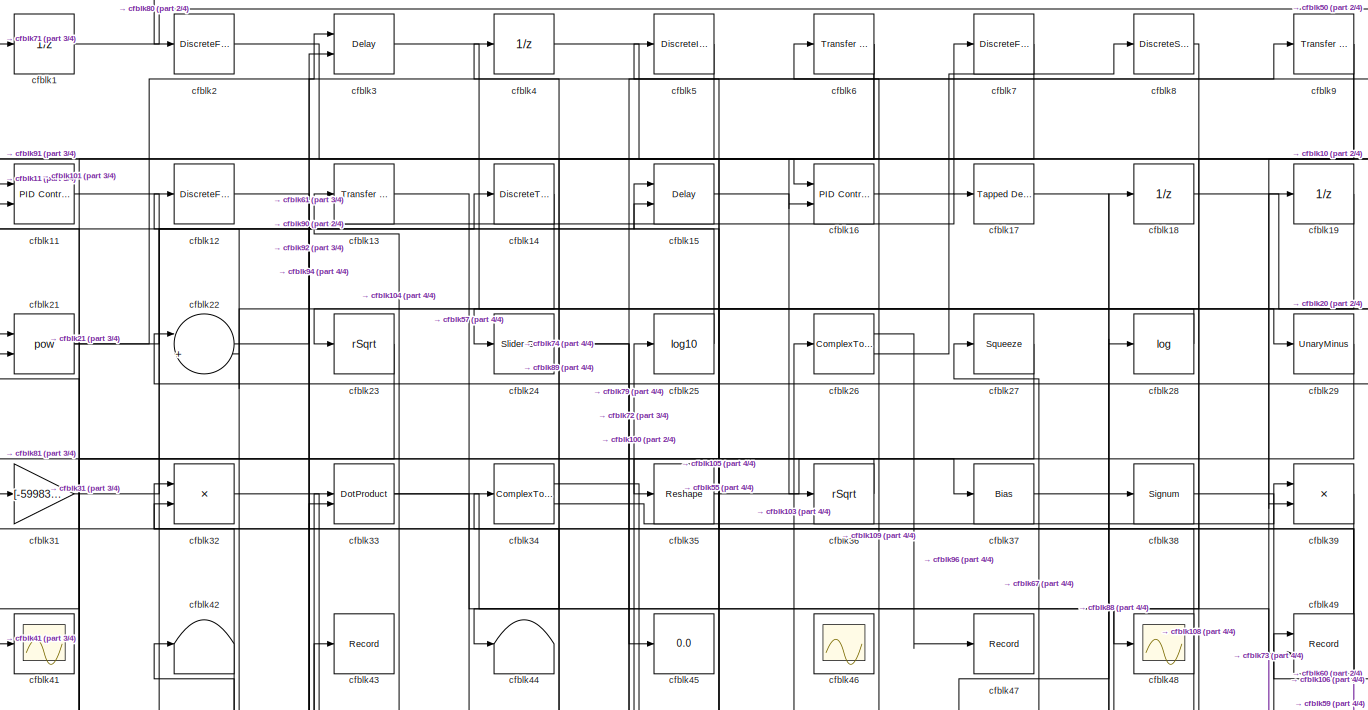
[diagram: root canvas - part 1/4, full width, top band]
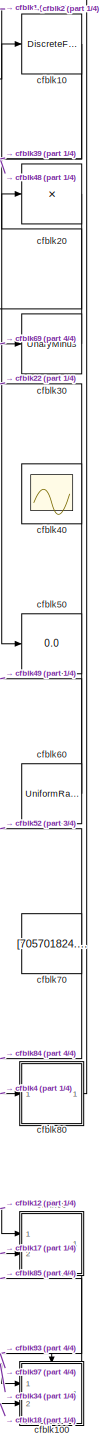
[diagram: root canvas - part 2/4, right side, full height]
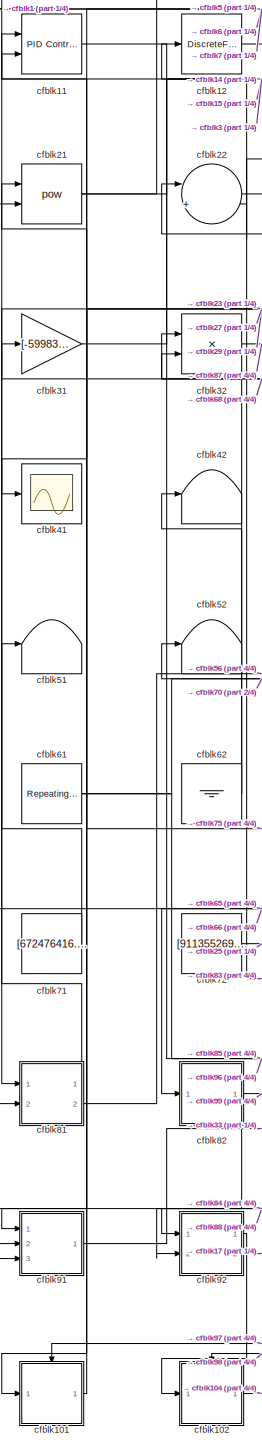
[diagram: root canvas - part 3/4, left side, full height]
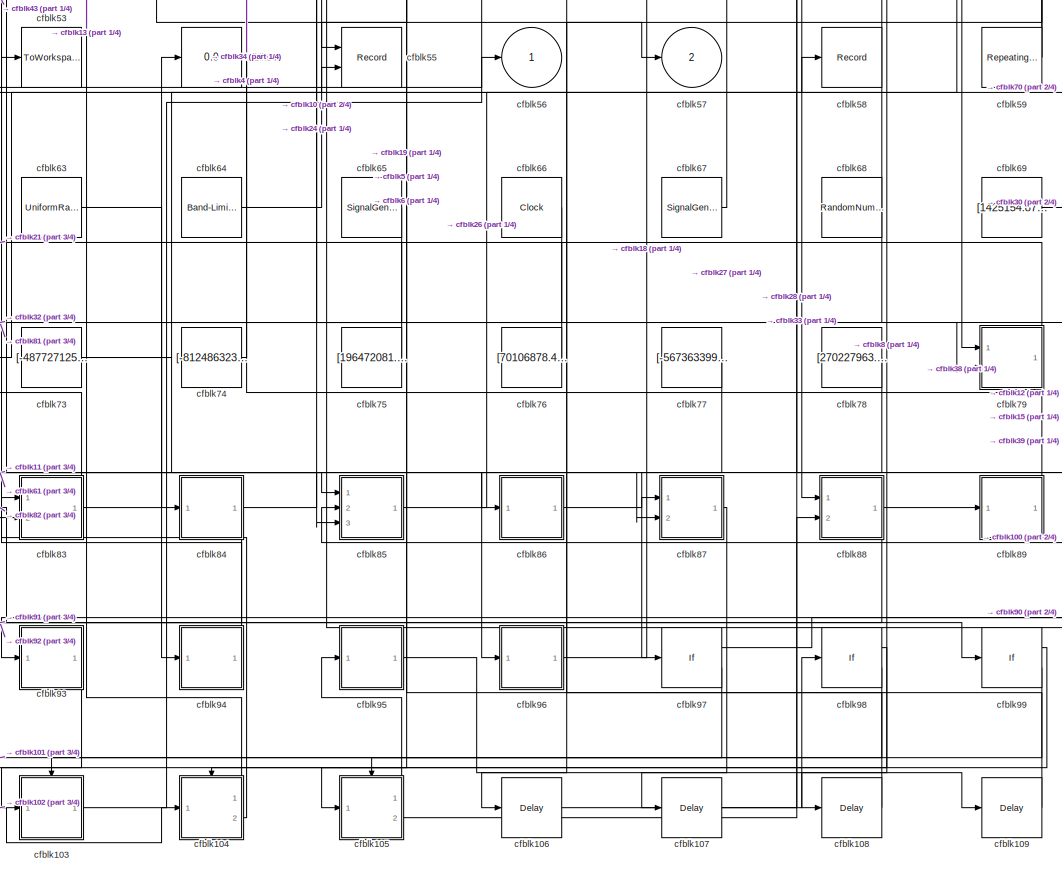
[diagram: root canvas - part 4/4, bottom center region]
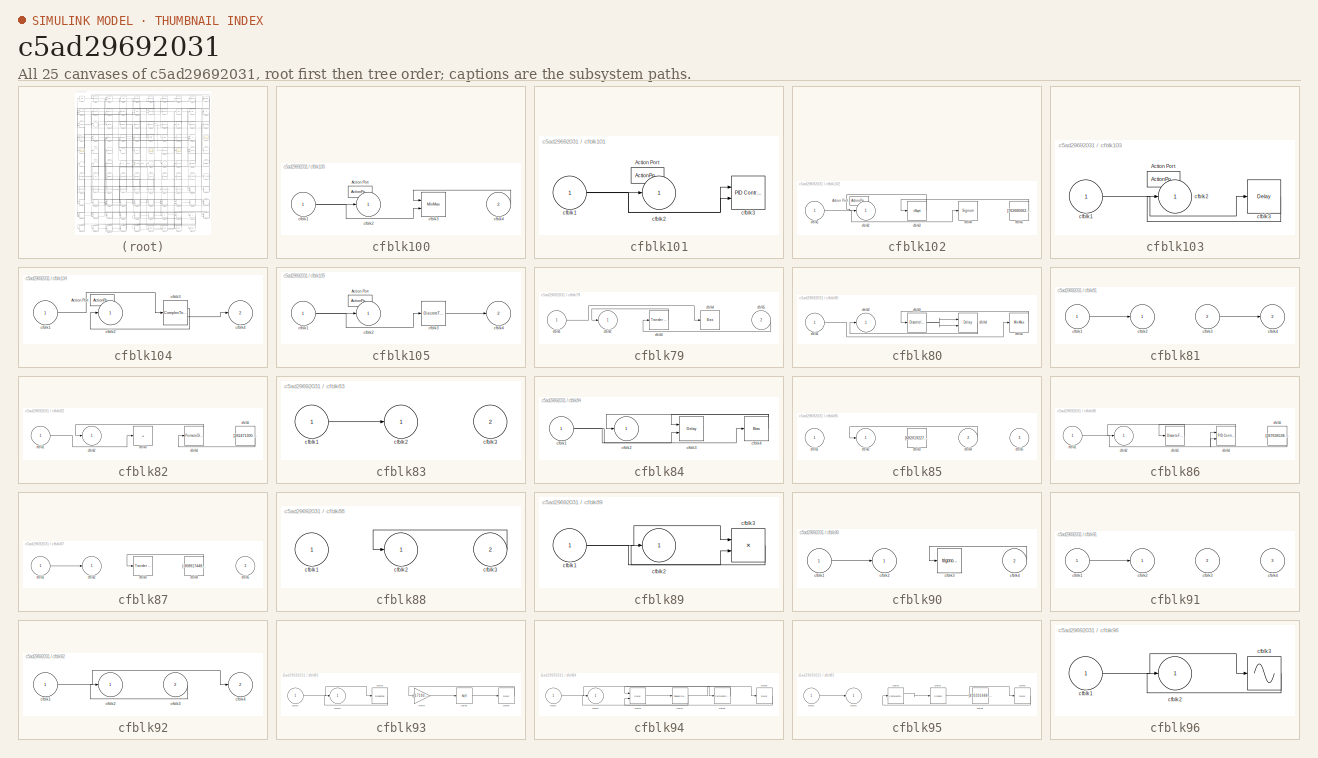
[diagram: thumbnail index - all 25 canvases of the model, root first then tree order]
MODEL slx_c5ad29692031
KIND model
CONFIG AbsTol = auto
CONFIG EnableMultiTasking = off
CONFIG FixedStep = auto
CONFIG MaxStep = auto
CONFIG MinStep = auto
CONFIG RelTol = 1e-3
CONFIG SampleTimeConstraint = Unconstrained
CONFIG SolverName = VariableStepAuto
CONFIG StartTime = 0.0
CONFIG StopTime = 10.0
BLOCK [UnitDelay] cfblk1
  HasFrameUpgradeWarning = on
BLOCK [DiscreteFilter] cfblk10
  InputPortMap = u0
  Ports = [1, 1]
  SampleTime = 1
BLOCK [SubSystem] cfblk100
  Ports = [2, 1, 0, 0, 0, 0, 0, 1]
  RequestExecContextInheritance = off
  TreatAsAtomicUnit = on
BLOCK [ActionPort] cfblk100/Action Port
  ActionPortLabel = if(u1 >= 0)
BLOCK [Inport] cfblk100/cfblk1
BLOCK [Outport] cfblk100/cfblk2
BLOCK [MinMax] cfblk100/cfblk3
  Inputs = 2
  Ports = [2, 1]
BLOCK [Inport] cfblk100/cfblk4
  Port = 2
BLOCK [SubSystem] cfblk101
  Ports = [1, 1, 0, 0, 0, 0, 0, 1]
  RequestExecContextInheritance = off
  TreatAsAtomicUnit = on
BLOCK [ActionPort] cfblk101/Action Port
  ActionPortLabel = else
BLOCK [Inport] cfblk101/cfblk1
BLOCK [Outport] cfblk101/cfblk2
BLOCK [Reference] cfblk101/cfblk3  REF=slpidlib/PID Controller (2DOF)
  Ports = [2, 1]
  SourceBlock = slpidlib/PID Controller (2DOF)
  SourceProductBaseCode = SL
  SourceType = PID 2dof
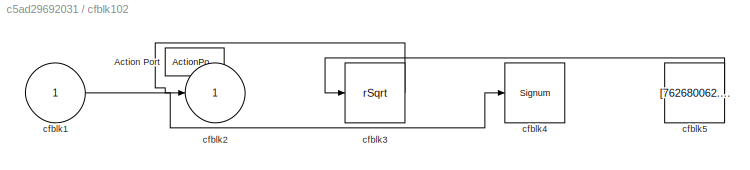
BLOCK [SubSystem] cfblk102
  Ports = [1, 1, 0, 0, 0, 0, 0, 1]
  RequestExecContextInheritance = off
  TreatAsAtomicUnit = on
BLOCK [ActionPort] cfblk102/Action Port
  ActionPortLabel = if(u1 >= 0)
BLOCK [Inport] cfblk102/cfblk1
BLOCK [Outport] cfblk102/cfblk2
BLOCK [Sqrt] cfblk102/cfblk3
  AlgorithmType = Newton-Raphson
  Operator = rSqrt
BLOCK [Signum] cfblk102/cfblk4
BLOCK [Constant] cfblk102/cfblk5
  SampleTime = 1
  Value = [762680062.186665]
BLOCK [SubSystem] cfblk103
  Ports = [1, 1, 0, 0, 0, 0, 0, 1]
  RequestExecContextInheritance = off
  TreatAsAtomicUnit = on
BLOCK [ActionPort] cfblk103/Action Port
  ActionPortLabel = else
BLOCK [Inport] cfblk103/cfblk1
BLOCK [Outport] cfblk103/cfblk2
BLOCK [Delay] cfblk103/cfblk3
  InputPortMap = u0
  Ports = [1, 1]
BLOCK [SubSystem] cfblk104
  Ports = [1, 2, 0, 0, 0, 0, 0, 1]
  RequestExecContextInheritance = off
  TreatAsAtomicUnit = on
BLOCK [ActionPort] cfblk104/Action Port
  ActionPortLabel = if(u1 >= 0)
BLOCK [Inport] cfblk104/cfblk1
BLOCK [Outport] cfblk104/cfblk2
BLOCK [ComplexToRealImag] cfblk104/cfblk3
  Ports = [1, 2]
BLOCK [Outport] cfblk104/cfblk4
  Port = 2
BLOCK [SubSystem] cfblk105
  Ports = [1, 2, 0, 0, 0, 0, 0, 1]
  RequestExecContextInheritance = off
  TreatAsAtomicUnit = on
BLOCK [ActionPort] cfblk105/Action Port
  ActionPortLabel = else
BLOCK [Inport] cfblk105/cfblk1
BLOCK [Outport] cfblk105/cfblk2
BLOCK [DiscreteTransferFcn] cfblk105/cfblk3
  InputPortMap = u0
  Ports = [1, 1]
BLOCK [Outport] cfblk105/cfblk4
  Port = 2
BLOCK [Delay] cfblk106
  InputPortMap = u0
  Ports = [1, 1]
  SampleTime = 1
BLOCK [Delay] cfblk107
  InputPortMap = u0
  Ports = [1, 1]
  SampleTime = 1
BLOCK [Delay] cfblk108
  InputPortMap = u0
  Ports = [1, 1]
  SampleTime = 1
BLOCK [Delay] cfblk109
  InputPortMap = u0
  Ports = [1, 1]
  SampleTime = 1
BLOCK [Reference] cfblk11  REF=slpidlib/PID Controller (2DOF)
  Ports = [2, 1]
  SourceBlock = slpidlib/PID Controller (2DOF)
  SourceProductBaseCode = SL
  SourceType = PID 2dof
BLOCK [DiscreteFilter] cfblk12
  InputPortMap = u0
  Ports = [1, 1]
  SampleTime = 1
BLOCK [Reference] cfblk13  REF=simulink/Discrete/Transfer Fcn
Real Zero
  Ports = [1, 1]
  SourceBlock = simulink/Discrete/Transfer Fcn\nReal Zero
  SourceProductBaseCode = SL
  SourceType = Transfer Fcn Real Zero
BLOCK [DiscreteTransferFcn] cfblk14
  InputPortMap = u0
  Ports = [1, 1]
  SampleTime = 1
BLOCK [Delay] cfblk15
  InputPortMap = u0,e6
  Ports = [2, 1]
  SampleTime = 1
  ShowEnablePort = on
BLOCK [Reference] cfblk16  REF=slpidlib/PID Controller (2DOF)
  Ports = [2, 1]
  SourceBlock = slpidlib/PID Controller (2DOF)
  SourceProductBaseCode = SL
  SourceType = PID 2dof
BLOCK [Reference] cfblk17  REF=simulink/Discrete/Tapped Delay
  Ports = [1, 1]
  SourceBlock = simulink/Discrete/Tapped Delay
  SourceProductBaseCode = SL
  SourceType = Tapped Delay Line
BLOCK [UnitDelay] cfblk18
  HasFrameUpgradeWarning = on
BLOCK [UnitDelay] cfblk19
  HasFrameUpgradeWarning = on
BLOCK [DiscreteFir] cfblk2
  InputPortMap = u0
  OutputPortMap = o0
  Ports = [1, 1]
  SampleTime = 1
BLOCK [Product] cfblk20
  Inputs = *
  Ports = [1, 1]
BLOCK [Math] cfblk21
  Operator = pow
  Ports = [2, 1]
BLOCK [Sum] cfblk22
  Inputs = |++
  Ports = [2, 1]
BLOCK [Sqrt] cfblk23
  AlgorithmType = Newton-Raphson
  Operator = rSqrt
BLOCK [Reference] cfblk24  REF=simulink/Math
Operations/Slider
Gain
  Ports = [1, 1]
  SourceBlock = simulink/Math\nOperations/Slider\nGain
  SourceProductBaseCode = SL
  SourceType = Slider Gain
BLOCK [Math] cfblk25
  Operator = log10
  Ports = [1, 1]
BLOCK [ComplexToRealImag] cfblk26
  Ports = [1, 2]
BLOCK [Squeeze] cfblk27
BLOCK [Math] cfblk28
  Operator = log
  Ports = [1, 1]
BLOCK [UnaryMinus] cfblk29
BLOCK [Delay] cfblk3
  InputPortMap = u0,e6
  Ports = [2, 1]
  SampleTime = 1
  ShowEnablePort = on
BLOCK [UnaryMinus] cfblk30
BLOCK [Gain] cfblk31
  Gain = [-599834200.647104]
BLOCK [Product] cfblk32
  Ports = [2, 1]
BLOCK [DotProduct] cfblk33
  OutDataTypeStr = Inherit: Inherit via internal rule
BLOCK [ComplexToRealImag] cfblk34
  Ports = [1, 2]
BLOCK [Reshape] cfblk35
  Ports = [1, 1]
BLOCK [Sqrt] cfblk36
  AlgorithmType = Newton-Raphson
  Operator = rSqrt
BLOCK [Bias] cfblk37
  Bias = [413411902.530255]
  SaturateOnIntegerOverflow = off
BLOCK [Signum] cfblk38
BLOCK [Product] cfblk39
  Ports = [2, 1]
BLOCK [UnitDelay] cfblk4
  HasFrameUpgradeWarning = on
BLOCK [Scope] cfblk40
  Floating = on
  NumInputPorts = 1
  Ports = []
BLOCK [Scope] cfblk41
  Floating = off
  NumInputPorts = 1
  Ports = [1]
BLOCK [Terminator] cfblk42
BLOCK [Record] cfblk43
  FileSettingsInternal = {"entries":[{"content":{"excelSettings":{"content":{},"type":"Streamout.ExcelSettings"}},"type":"Streamout.FileSettingStorage","uuid":"86445610-928e-4e35-9d69-0b2c780a0add"}],"packageUris":["http://schema.mathworks.com/mf0/streamout_blocks/R2020a"],"version":"1.0"}
  Ports = [1]
  SignalsInternal = {"entries":[{"content":{"signals":[{"content":{"blockPath":["sampleModel180/cfblk43"],"channel":[],"dimensions":[1],"domain":"sampleModel180/cfblk43","lineColor":"#4dbeee","plots":[1],"port":1,"sid":[""],"signalID":6746,"signalName":"cfblk79"},"type":"RecordBlkView.Signal","uuid":"ec482149-7623-4eb4-899c-afc25818783d"}]},"type":"RecordBlkView.InputSignals","uuid":"a47f1734-a9d2-497d-b596-b6906e889...<+97ch>
  VisualizationBindings = {"sparklinesplugin":{"info":[{"bindingParametersList":[],"subplotID":1}]}}
BLOCK [Terminator] cfblk44
BLOCK [Display] cfblk45
  Decimation = 1
  Ports = [1]
BLOCK [Scope] cfblk46
  Floating = on
  NumInputPorts = 1
  Ports = []
BLOCK [Record] cfblk47
  FileSettingsInternal = {"entries":[{"content":{"excelSettings":{"content":{},"type":"Streamout.ExcelSettings"}},"type":"Streamout.FileSettingStorage","uuid":"e1298681-f42b-4617-9df3-3c8d902f72c9"}],"packageUris":["http://schema.mathworks.com/mf0/streamout_blocks/R2020a"],"version":"1.0"}
  Ports = [1]
  SignalsInternal = {"entries":[{"content":{"signals":[{"content":{"blockPath":["sampleModel180/cfblk47"],"channel":[],"dimensions":[1],"domain":"sampleModel180/cfblk47","lineColor":"#a2142f","plots":[1],"port":1,"sid":[""],"signalID":6750,"signalName":"cfblk26:1"},"type":"RecordBlkView.Signal","uuid":"9f111c3f-576d-47fa-9d33-bb703aee1316"}]},"type":"RecordBlkView.InputSignals","uuid":"73cee130-5659-46ca-9b54-9eadd69...<+99ch>
  VisualizationBindings = {"sparklinesplugin":{"info":[{"bindingParametersList":[],"subplotID":1}]}}
BLOCK [Scope] cfblk48
  Floating = off
  NumInputPorts = 1
  Ports = [1]
BLOCK [Record] cfblk49
  CompatibilityTag = XY
  FileSettingsInternal = {"entries":[{"content":{"excelSettings":{"content":{},"type":"Streamout.ExcelSettings"}},"type":"Streamout.FileSettingStorage","uuid":"1f60f6e5-b911-44b5-b854-fc3e9ae4dd78"}],"packageUris":["http://schema.mathworks.com/mf0/streamout_blocks/R2020a"],"version":"1.0"}
  Layout = [1 1]
  Ports = [2]
  SignalsInternal = {"entries":[{"content":{"signals":[{"content":{"blockPath":["sampleModel180/cfblk49"],"channel":[],"dimensions":[1],"domain":"sampleModel180/cfblk49","lineColor":"#a2142f","plots":[1],"port":1,"sid":[""],"signalID":6754,"signalName":"cfblk60"},"type":"RecordBlkView.Signal","uuid":"31debbde-8abb-4355-a209-1ad38695556c"},{"content":{"blockPath":["sampleModel180/cfblk49"],"channel":[],"dimensions":[1...<+383ch>
  VisualizationBindings = {"xyplotplugin":{"info":[{"series":[{"bindingParametersList":[{"parameter":"X-Axis","signalID":6754,"signalName":"cfblk60"},{"parameter":"Y-Axis","signalID":6758,"signalName":"cfblk33"}],"seriesID":2376}],"subplotID":1}]}}
BLOCK [DiscreteIntegrator] cfblk5
  ICPrevOutput = DiscIntNeverNeededParam
  ICPrevScaledInput = DiscIntNeverNeededParam
  InitialConditionSetting = Auto
  Ports = [1, 1]
BLOCK [Display] cfblk50
  Decimation = 1
  Ports = [1]
BLOCK [Terminator] cfblk51
BLOCK [Terminator] cfblk52
BLOCK [ToWorkspace] cfblk53
  FixptAsFi = on
  MaxDataPoints = inf
  Ports = [1]
  SampleTime = -1
  SaveFormat = Timeseries
  VariableName = twnksui
BLOCK [Display] cfblk54
  Decimation = 1
  Ports = [1]
BLOCK [Record] cfblk55
  CompatibilityTag = XY
  FileSettingsInternal = {"entries":[{"content":{"excelSettings":{"content":{},"type":"Streamout.ExcelSettings"}},"type":"Streamout.FileSettingStorage","uuid":"12a34ce2-1638-4df7-a144-cdb538d8a942"}],"packageUris":["http://schema.mathworks.com/mf0/streamout_blocks/R2020a"],"version":"1.0"}
  Layout = [1 1]
  Ports = [2]
  SignalsInternal = {"entries":[{"content":{"signals":[{"content":{"blockPath":["sampleModel180/cfblk55"],"channel":[],"dimensions":[1],"domain":"sampleModel180/cfblk55","lineColor":"#a2142f","plots":[1],"port":1,"sid":[""],"signalID":6762,"signalName":"cfblk19"},"type":"RecordBlkView.Signal","uuid":"c6582ab4-e272-4f30-9ee4-33b16e3ab7cf"},{"content":{"blockPath":["sampleModel180/cfblk55"],"channel":[],"dimensions":[1...<+383ch>
  VisualizationBindings = {"xyplotplugin":{"info":[{"series":[{"bindingParametersList":[{"parameter":"X-Axis","signalID":6762,"signalName":"cfblk19"},{"parameter":"Y-Axis","signalID":6766,"signalName":"cfblk64"}],"seriesID":41445}],"subplotID":1}]}}
BLOCK [Outport] cfblk56
BLOCK [Outport] cfblk57
  Port = 2
BLOCK [Record] cfblk58
  FileSettingsInternal = {"entries":[{"content":{"excelSettings":{"content":{},"type":"Streamout.ExcelSettings"}},"type":"Streamout.FileSettingStorage","uuid":"8464cd75-87e0-42e4-b570-b7ba8dcc5bb1"}],"packageUris":["http://schema.mathworks.com/mf0/streamout_blocks/R2020a"],"version":"1.0"}
  Ports = [1]
  SignalsInternal = {"entries":[{"content":{"signals":[{"content":{"blockPath":["sampleModel180/cfblk58"],"channel":[],"dimensions":[1],"domain":"sampleModel180/cfblk58","lineColor":"#ff13a6","plots":[1],"port":1,"sid":[""],"signalID":6770,"signalName":"cfblk85"},"type":"RecordBlkView.Signal","uuid":"29ee1141-0291-4ef1-9b75-827cb369f832"}]},"type":"RecordBlkView.InputSignals","uuid":"9077ce9c-33ad-41e5-ad34-2c1f7967b...<+97ch>
  VisualizationBindings = {"sparklinesplugin":{"info":[{"bindingParametersList":[],"subplotID":1}]}}
BLOCK [Reference] cfblk59  REF=simulink/Sources/Repeating
Sequence
Stair
  Ports = [0, 1]
  SourceBlock = simulink/Sources/Repeating\nSequence\nStair
  SourceProductBaseCode = SL
  SourceType = Repeating Sequence Stair
BLOCK [Reference] cfblk6  REF=simulink/Discrete/Transfer Fcn
Lead or Lag
  Ports = [1, 1]
  SourceBlock = simulink/Discrete/Transfer Fcn\nLead or Lag
  SourceProductBaseCode = SL
  SourceType = Lead or Lag Compensator
BLOCK [UniformRandomNumber] cfblk60
  Maximum = [7739222347.469520]
  Minimum = [-5912958699.125717]
  SampleTime = 0.1
  Seed = [40590671.000000]
BLOCK [Reference] cfblk61  REF=simulink/Sources/Repeating
Sequence
  Ports = [0, 1]
  SourceBlock = simulink/Sources/Repeating\nSequence
  SourceProductBaseCode = SL
  SourceType = Repeating table
BLOCK [Ground] cfblk62
BLOCK [UniformRandomNumber] cfblk63
  Maximum = [3798625207.117166]
  Minimum = [-2646210687.817862]
  SampleTime = 0.1
  Seed = [15842271.000000]
BLOCK [Reference] cfblk64  REF=simulink/Sources/Band-Limited
White Noise
  Ports = [0, 1]
  SourceBlock = simulink/Sources/Band-Limited\nWhite Noise
  SourceProductBaseCode = SL
  SourceType = Band-Limited White Noise.
BLOCK [SignalGenerator] cfblk65
  Amplitude = [464475926.182295]
  Ports = [0, 1]
  Units = rad/sec
BLOCK [Clock] cfblk66
BLOCK [SignalGenerator] cfblk67
  Amplitude = [-424263037.736154]
  Ports = [0, 1]
  WaveForm = square
BLOCK [RandomNumber] cfblk68
  Mean = [-24659.259626]
  SampleTime = 0.1
  Seed = [139015399.000000]
  Variance = [97657.847549]
BLOCK [Constant] cfblk69
  SampleTime = 1
  Value = [1425154.878036]
BLOCK [DiscreteFir] cfblk7
  InputPortMap = u0
  OutputPortMap = o0
  Ports = [1, 1]
  SampleTime = 1
BLOCK [Constant] cfblk70
  SampleTime = 1
  Value = [705701824.270861]
BLOCK [Constant] cfblk71
  SampleTime = 1
  Value = [672476416.559161]
BLOCK [Constant] cfblk72
  SampleTime = 1
  Value = [911355269.533230]
BLOCK [Constant] cfblk73
  SampleTime = 1
  Value = [-487727125.548299]
BLOCK [Constant] cfblk74
  SampleTime = 1
  Value = [-812486323.268573]
BLOCK [Constant] cfblk75
  SampleTime = 1
  Value = [196472081.041683]
BLOCK [Constant] cfblk76
  SampleTime = 1
  Value = [70106878.473196]
BLOCK [Constant] cfblk77
  SampleTime = 1
  Value = [-567363399.949750]
BLOCK [Constant] cfblk78
  SampleTime = 1
  Value = [270227963.797815]
BLOCK [SubSystem] cfblk79
  Ports = [2, 1]
  RequestExecContextInheritance = off
BLOCK [Inport] cfblk79/cfblk1
BLOCK [Outport] cfblk79/cfblk2
BLOCK [Reference] cfblk79/cfblk3  REF=simulink/Discrete/Transfer Fcn
Lead or Lag
  Ports = [1, 1]
  SourceBlock = simulink/Discrete/Transfer Fcn\nLead or Lag
  SourceProductBaseCode = SL
  SourceType = Lead or Lag Compensator
BLOCK [Bias] cfblk79/cfblk4
  Bias = [-299998537.007006]
  SaturateOnIntegerOverflow = off
BLOCK [Inport] cfblk79/cfblk5
  Port = 2
BLOCK [DiscreteStateSpace] cfblk8
BLOCK [SubSystem] cfblk80
  Ports = [1, 1]
  RequestExecContextInheritance = off
BLOCK [Inport] cfblk80/cfblk1
BLOCK [Outport] cfblk80/cfblk2
BLOCK [DiscreteIntegrator] cfblk80/cfblk3
  ICPrevOutput = DiscIntNeverNeededParam
  ICPrevScaledInput = DiscIntNeverNeededParam
  InitialConditionSetting = Auto
  Ports = [1, 1]
BLOCK [Delay] cfblk80/cfblk4
  InputPortMap = u0,e6
  Ports = [2, 1]
  SampleTime = 1
  ShowEnablePort = on
BLOCK [MinMax] cfblk80/cfblk5
  Function = max
  Ports = [1, 1]
BLOCK [SubSystem] cfblk81
  Ports = [2, 2]
  RequestExecContextInheritance = off
BLOCK [Inport] cfblk81/cfblk1
BLOCK [Outport] cfblk81/cfblk2
BLOCK [Inport] cfblk81/cfblk3
  Port = 2
BLOCK [Outport] cfblk81/cfblk4
  Port = 2
BLOCK [SubSystem] cfblk82
  Ports = [1, 1]
  RequestExecContextInheritance = off
BLOCK [Inport] cfblk82/cfblk1
BLOCK [Outport] cfblk82/cfblk2
BLOCK [Sum] cfblk82/cfblk3
  IconShape = rectangular
  Inputs = +
  Ports = [1, 1]
BLOCK [PermuteDimensions] cfblk82/cfblk4
BLOCK [Constant] cfblk82/cfblk5
  SampleTime = 1
  Value = [262471300.337617]
BLOCK [SubSystem] cfblk83
  Ports = [2, 1]
  RequestExecContextInheritance = off
BLOCK [Inport] cfblk83/cfblk1
BLOCK [Outport] cfblk83/cfblk2
BLOCK [Inport] cfblk83/cfblk3
  Port = 2
BLOCK [SubSystem] cfblk84
  Ports = [1, 1]
  RequestExecContextInheritance = off
BLOCK [Inport] cfblk84/cfblk1
BLOCK [Outport] cfblk84/cfblk2
BLOCK [Delay] cfblk84/cfblk3
  DelayLengthSource = Input port
  InputPortMap = u0,p1
  Ports = [2, 1]
  SampleTime = 1
BLOCK [Bias] cfblk84/cfblk4
  Bias = [-608128811.975170]
  SaturateOnIntegerOverflow = off
BLOCK [SubSystem] cfblk85
  Ports = [3, 1]
  RequestExecContextInheritance = off
BLOCK [Inport] cfblk85/cfblk1
BLOCK [Outport] cfblk85/cfblk2
BLOCK [Constant] cfblk85/cfblk3
  SampleTime = 1
  Value = [682019227.976121]
BLOCK [Inport] cfblk85/cfblk4
  Port = 2
BLOCK [Inport] cfblk85/cfblk5
  Port = 3
BLOCK [SubSystem] cfblk86
  Ports = [1, 1]
  RequestExecContextInheritance = off
BLOCK [Inport] cfblk86/cfblk1
BLOCK [Outport] cfblk86/cfblk2
BLOCK [DiscreteFilter] cfblk86/cfblk3
  InputPortMap = u0
  Ports = [1, 1]
  SampleTime = 1
BLOCK [Reference] cfblk86/cfblk4  REF=slpidlib/PID Controller (2DOF)
  Ports = [2, 1]
  SourceBlock = slpidlib/PID Controller (2DOF)
  SourceProductBaseCode = SL
  SourceType = PID 2dof
BLOCK [Constant] cfblk86/cfblk5
  SampleTime = 1
  Value = [267636538.716776]
BLOCK [SubSystem] cfblk87
  Ports = [2, 1]
  RequestExecContextInheritance = off
BLOCK [Inport] cfblk87/cfblk1
BLOCK [Outport] cfblk87/cfblk2
BLOCK [Reference] cfblk87/cfblk3  REF=simulink/Discrete/Transfer Fcn
Lead or Lag
  Ports = [1, 1]
  SourceBlock = simulink/Discrete/Transfer Fcn\nLead or Lag
  SourceProductBaseCode = SL
  SourceType = Lead or Lag Compensator
BLOCK [Constant] cfblk87/cfblk4
  SampleTime = 1
  Value = [-908917448.180678]
BLOCK [Inport] cfblk87/cfblk5
  Port = 2
BLOCK [SubSystem] cfblk88
  Ports = [2, 1]
  RequestExecContextInheritance = off
BLOCK [Inport] cfblk88/cfblk1
BLOCK [Outport] cfblk88/cfblk2
BLOCK [Inport] cfblk88/cfblk3
  Port = 2
BLOCK [SubSystem] cfblk89
  Ports = [1, 1]
  RequestExecContextInheritance = off
BLOCK [Inport] cfblk89/cfblk1
BLOCK [Outport] cfblk89/cfblk2
BLOCK [Product] cfblk89/cfblk3
  Ports = [2, 1]
BLOCK [Reference] cfblk9  REF=simulink/Discrete/Transfer Fcn
First Order
  Ports = [1, 1]
  SourceBlock = simulink/Discrete/Transfer Fcn\nFirst Order
  SourceProductBaseCode = SL
  SourceType = First Order Transfer Fcn
BLOCK [SubSystem] cfblk90
  Ports = [2, 1]
  RequestExecContextInheritance = off
BLOCK [Inport] cfblk90/cfblk1
BLOCK [Outport] cfblk90/cfblk2
BLOCK [Trigonometry] cfblk90/cfblk3
  Ports = [1, 1]
BLOCK [Inport] cfblk90/cfblk4
  Port = 2
BLOCK [SubSystem] cfblk91
  Ports = [3, 1]
  RequestExecContextInheritance = off
BLOCK [Inport] cfblk91/cfblk1
BLOCK [Outport] cfblk91/cfblk2
BLOCK [Inport] cfblk91/cfblk3
  Port = 2
BLOCK [Inport] cfblk91/cfblk4
  Port = 3
BLOCK [SubSystem] cfblk92
  Ports = [2, 2]
  RequestExecContextInheritance = off
BLOCK [Inport] cfblk92/cfblk1
BLOCK [Outport] cfblk92/cfblk2
BLOCK [Inport] cfblk92/cfblk3
  Port = 2
BLOCK [Outport] cfblk92/cfblk4
  Port = 2
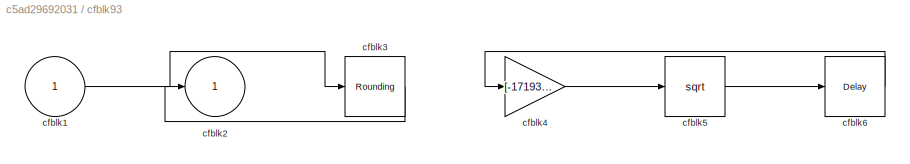
BLOCK [SubSystem] cfblk93
  Ports = [1, 1]
  RequestExecContextInheritance = off
BLOCK [Inport] cfblk93/cfblk1
BLOCK [Outport] cfblk93/cfblk2
BLOCK [Rounding] cfblk93/cfblk3
BLOCK [Gain] cfblk93/cfblk4
  Gain = [-17193162.527698]
BLOCK [Sqrt] cfblk93/cfblk5
BLOCK [Delay] cfblk93/cfblk6
  InputPortMap = u0
  Ports = [1, 1]
  SampleTime = 1
BLOCK [SubSystem] cfblk94
  Ports = [1, 1]
  RequestExecContextInheritance = off
BLOCK [Inport] cfblk94/cfblk1
BLOCK [Outport] cfblk94/cfblk2
BLOCK [Delay] cfblk94/cfblk3
  InputPortMap = u0,e6
  Ports = [2, 1]
  SampleTime = 1
  ShowEnablePort = on
BLOCK [Reference] cfblk94/cfblk4  REF=simulink/Discrete/Tapped Delay
  Ports = [1, 1]
  SourceBlock = simulink/Discrete/Tapped Delay
  SourceProductBaseCode = SL
  SourceType = Tapped Delay Line
BLOCK [PermuteDimensions] cfblk94/cfblk5
BLOCK [Delay] cfblk94/cfblk6
  InputPortMap = u0
  Ports = [1, 1]
  SampleTime = 1
BLOCK [SubSystem] cfblk95
  Ports = [1, 1]
  RequestExecContextInheritance = off
BLOCK [Inport] cfblk95/cfblk1
BLOCK [Outport] cfblk95/cfblk2
BLOCK [ComplexToRealImag] cfblk95/cfblk3
  Ports = [1, 2]
BLOCK [Signum] cfblk95/cfblk4
BLOCK [Constant] cfblk95/cfblk5
  SampleTime = 1
  Value = [491031688.174650]
BLOCK [Delay] cfblk95/cfblk6
  InputPortMap = u0
  Ports = [1, 1]
  SampleTime = 1
BLOCK [SubSystem] cfblk96
  Ports = [1, 1]
  RequestExecContextInheritance = off
BLOCK [Inport] cfblk96/cfblk1
BLOCK [Outport] cfblk96/cfblk2
BLOCK [Sin] cfblk96/cfblk3
  Ports = [1, 1]
  SampleTime = 0
  TimeSource = Use external signal
BLOCK [If] cfblk97
  IfExpression = u1 >= 0
  Ports = [1, 2]
  SampleTime = 1
BLOCK [If] cfblk98
  IfExpression = u1 >= 0
  Ports = [1, 2]
  SampleTime = 1
BLOCK [If] cfblk99
  IfExpression = u1 >= 0
  Ports = [1, 2]
  SampleTime = 1
NET cfblk100/cfblk1:1 -> cfblk100/cfblk2:1, cfblk100/cfblk3:2
LINE cfblk100/cfblk4:1 -> cfblk100/cfblk3:1
LINE cfblk100:1 -> cfblk85:2
NET cfblk101/cfblk1:1 -> cfblk101/cfblk2:1, cfblk101/cfblk3:1, cfblk101/cfblk3:2
LINE cfblk101:1 -> cfblk31:1
LINE cfblk102/cfblk1:1 -> cfblk102/cfblk4:1
LINE cfblk102/cfblk3:1 -> cfblk102/cfblk2:1
LINE cfblk102/cfblk5:1 -> cfblk102/cfblk3:1
LINE cfblk102:1 -> cfblk104:1
LINE cfblk103/cfblk1:1 -> cfblk103/cfblk3:1
LINE cfblk103/cfblk3:1 -> cfblk103/cfblk2:1
LINE cfblk103:1 -> cfblk26:1
LINE cfblk104/cfblk1:1 -> cfblk104/cfblk3:1
LINE cfblk104/cfblk3:1 -> cfblk104/cfblk2:1
LINE cfblk104/cfblk3:2 -> cfblk104/cfblk4:1
LINE cfblk104:1 -> cfblk13:1
LINE cfblk104:2 -> cfblk83:1
NET cfblk105/cfblk1:1 -> cfblk105/cfblk2:1, cfblk105/cfblk3:1
LINE cfblk105/cfblk3:1 -> cfblk105/cfblk4:1
LINE cfblk105:1 -> cfblk95:1
LINE cfblk105:2 -> cfblk28:1
LINE cfblk106:1 -> cfblk88:2
LINE cfblk107:1 -> cfblk98:1
LINE cfblk108:1 -> cfblk5:1
LINE cfblk109:1 -> cfblk6:1
NET cfblk10:1 -> cfblk39:2, cfblk48:1
LINE cfblk11:1 -> cfblk85:1
LINE cfblk12:1 -> cfblk90:1
LINE cfblk13:1 -> cfblk57:1
LINE cfblk14:1 -> cfblk23:1
LINE cfblk15:1 -> cfblk36:1
LINE cfblk16:1 -> cfblk7:1
LINE cfblk17:1 -> cfblk90:2
LINE cfblk18:1 -> cfblk100:2
LINE cfblk19:1 -> cfblk55:1
LINE cfblk1:1 -> cfblk50:1
LINE cfblk20:1 -> cfblk22:2
NET cfblk21:1 -> cfblk14:1, cfblk3:1
LINE cfblk22:1 -> cfblk9:1
LINE cfblk23:1 -> cfblk81:1
NET cfblk24:1 -> cfblk45:1, cfblk79:2
LINE cfblk25:1 -> cfblk11:1
LINE cfblk26:1 -> cfblk47:1
LINE cfblk26:2 -> cfblk8:1
LINE cfblk27:1 -> cfblk41:1
LINE cfblk28:1 -> cfblk24:1
LINE cfblk29:1 -> cfblk101:1
LINE cfblk2:1 -> cfblk16:1
LINE cfblk30:1 -> cfblk20:1
LINE cfblk31:1 -> cfblk15:1
LINE cfblk32:1 -> cfblk87:2
NET cfblk33:1 -> cfblk49:2, cfblk88:1
LINE cfblk34:1 -> cfblk100:1
LINE cfblk34:2 -> cfblk39:1
LINE cfblk35:1 -> cfblk37:1
LINE cfblk36:1 -> cfblk35:1
LINE cfblk37:1 -> cfblk38:1
LINE cfblk38:1 -> cfblk79:1
LINE cfblk39:1 -> cfblk106:1
LINE cfblk3:1 -> cfblk29:1
LINE cfblk4:1 -> cfblk80:1
NET cfblk59:1 -> cfblk12:1, cfblk15:2
LINE cfblk5:1 -> cfblk91:1
NET cfblk60:1 -> cfblk22:1, cfblk49:1
NET cfblk61:1 -> cfblk3:2, cfblk96:1
NET cfblk62:1 -> cfblk11:2, cfblk42:1
LINE cfblk63:1 -> cfblk94:1
LINE cfblk64:1 -> cfblk55:2
LINE cfblk65:1 -> cfblk82:1
LINE cfblk66:1 -> cfblk81:2
LINE cfblk67:1 -> cfblk27:1
NET cfblk68:1 -> cfblk32:1, cfblk83:2
LINE cfblk69:1 -> cfblk30:1
NET cfblk6:1 -> cfblk105:1, cfblk91:3
NET cfblk70:1 -> cfblk52:1, cfblk84:1
LINE cfblk71:1 -> cfblk1:1
LINE cfblk72:1 -> cfblk25:1
NET cfblk73:1 -> cfblk19:1, cfblk85:3
LINE cfblk74:1 -> cfblk4:1
LINE cfblk75:1 -> cfblk21:1
LINE cfblk76:1 -> cfblk53:1
LINE cfblk77:1 -> cfblk86:1
LINE cfblk78:1 -> cfblk97:1
LINE cfblk79/cfblk1:1 -> cfblk79/cfblk4:1
LINE cfblk79/cfblk3:1 -> cfblk79/cfblk2:1
LINE cfblk79/cfblk5:1 -> cfblk79/cfblk3:1
LINE cfblk79:1 -> cfblk43:1
LINE cfblk7:1 -> cfblk21:2
LINE cfblk80/cfblk1:1 -> cfblk80/cfblk5:1
NET cfblk80/cfblk3:1 -> cfblk80/cfblk4:1, cfblk80/cfblk4:2
LINE cfblk80/cfblk4:1 -> cfblk80/cfblk2:1
LINE cfblk80/cfblk5:1 -> cfblk80/cfblk3:1
LINE cfblk80:1 -> cfblk2:1
LINE cfblk81/cfblk1:1 -> cfblk81/cfblk2:1
LINE cfblk81/cfblk3:1 -> cfblk81/cfblk4:1
LINE cfblk81:1 -> cfblk51:1
LINE cfblk81:2 -> cfblk56:1
LINE cfblk82/cfblk1:1 -> cfblk82/cfblk3:1
LINE cfblk82/cfblk4:1 -> cfblk82/cfblk2:1
LINE cfblk82/cfblk5:1 -> cfblk82/cfblk4:1
NET cfblk82:1 -> cfblk92:2, cfblk99:1
LINE cfblk83/cfblk1:1 -> cfblk83/cfblk2:1
NET cfblk83:1 -> cfblk32:2, cfblk54:1
NET cfblk84/cfblk1:1 -> cfblk84/cfblk3:2, cfblk84/cfblk4:1
NET cfblk84/cfblk4:1 -> cfblk84/cfblk2:1, cfblk84/cfblk3:1
NET cfblk84:1 -> cfblk10:1, cfblk91:2
LINE cfblk85/cfblk4:1 -> cfblk85/cfblk2:1
LINE cfblk85:1 -> cfblk58:1
LINE cfblk86/cfblk1:1 -> cfblk86/cfblk4:2
LINE cfblk86/cfblk3:1 -> cfblk86/cfblk2:1
LINE cfblk86/cfblk4:1 -> cfblk86/cfblk3:1
LINE cfblk86/cfblk5:1 -> cfblk86/cfblk4:1
LINE cfblk86:1 -> cfblk87:1
LINE cfblk87/cfblk1:1 -> cfblk87/cfblk2:1
LINE cfblk87/cfblk4:1 -> cfblk87/cfblk3:1
LINE cfblk87:1 -> cfblk107:1
LINE cfblk88/cfblk3:1 -> cfblk88/cfblk2:1
NET cfblk88:1 -> cfblk89:1, cfblk92:1
NET cfblk89/cfblk1:1 -> cfblk89/cfblk3:1, cfblk89/cfblk3:2
LINE cfblk89/cfblk3:1 -> cfblk89/cfblk2:1
LINE cfblk89:1 -> cfblk34:1
LINE cfblk8:1 -> cfblk108:1
LINE cfblk90/cfblk1:1 -> cfblk90/cfblk2:1
LINE cfblk90/cfblk4:1 -> cfblk90/cfblk3:1
LINE cfblk90:1 -> cfblk93:1
LINE cfblk91/cfblk1:1 -> cfblk91/cfblk2:1
LINE cfblk91:1 -> cfblk33:2
LINE cfblk92/cfblk1:1 -> cfblk92/cfblk4:1
LINE cfblk92/cfblk3:1 -> cfblk92/cfblk2:1
LINE cfblk92:1 -> cfblk102:1
LINE cfblk92:2 -> cfblk17:1
LINE cfblk93/cfblk1:1 -> cfblk93/cfblk3:1
LINE cfblk93/cfblk3:1 -> cfblk93/cfblk2:1
LINE cfblk93/cfblk4:1 -> cfblk93/cfblk5:1
LINE cfblk93/cfblk5:1 -> cfblk93/cfblk6:1
LINE cfblk93/cfblk6:1 -> cfblk93/cfblk4:1
LINE cfblk93:1 -> cfblk103:1
LINE cfblk94/cfblk1:1 -> cfblk94/cfblk5:1
LINE cfblk94/cfblk3:1 -> cfblk94/cfblk4:1
NET cfblk94/cfblk4:1 -> cfblk94/cfblk2:1, cfblk94/cfblk6:1
LINE cfblk94/cfblk5:1 -> cfblk94/cfblk3:1
LINE cfblk94/cfblk6:1 -> cfblk94/cfblk3:2
LINE cfblk94:1 -> cfblk33:1
LINE cfblk95/cfblk1:1 -> cfblk95/cfblk2:1
LINE cfblk95/cfblk3:1 -> cfblk95/cfblk4:1
LINE cfblk95/cfblk4:1 -> cfblk95/cfblk6:1
LINE cfblk95/cfblk6:1 -> cfblk95/cfblk3:1
LINE cfblk95:1 -> cfblk109:1
LINE cfblk96/cfblk1:1 -> cfblk96/cfblk3:1
LINE cfblk96/cfblk3:1 -> cfblk96/cfblk2:1
LINE cfblk96:1 -> cfblk18:1
LINE cfblk97:1 -> cfblk100:ifaction
LINE cfblk97:2 -> cfblk101:ifaction
LINE cfblk98:1 -> cfblk102:ifaction
LINE cfblk98:2 -> cfblk103:ifaction
LINE cfblk99:1 -> cfblk104:ifaction
LINE cfblk99:2 -> cfblk105:ifaction
NET cfblk9:1 -> cfblk16:2, cfblk44:1
note: NET lines group one-source signal fan-out (src -> all destinations, sorted); 1:1 wires keep LINE
